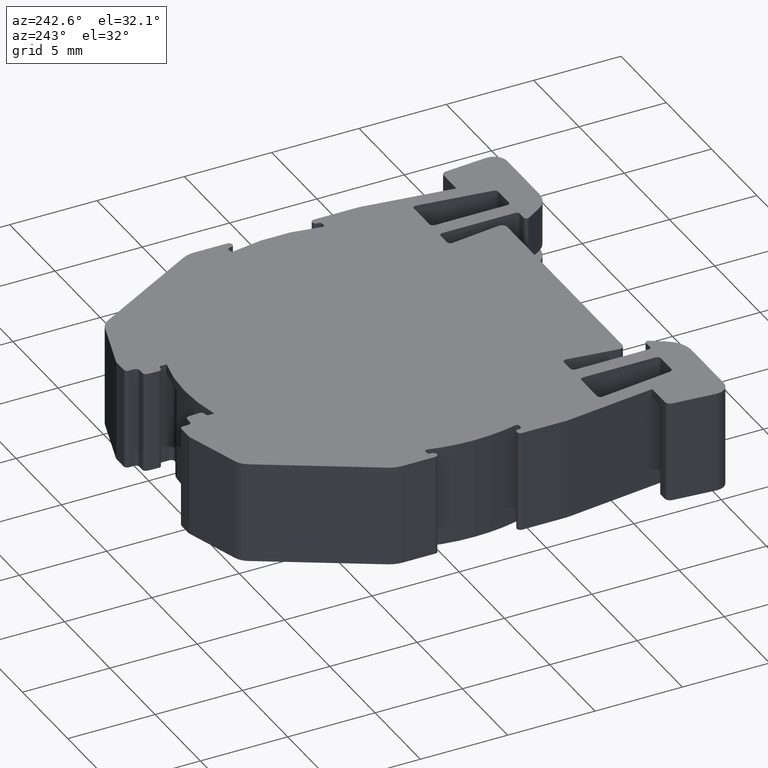
[diagram: clean part render]
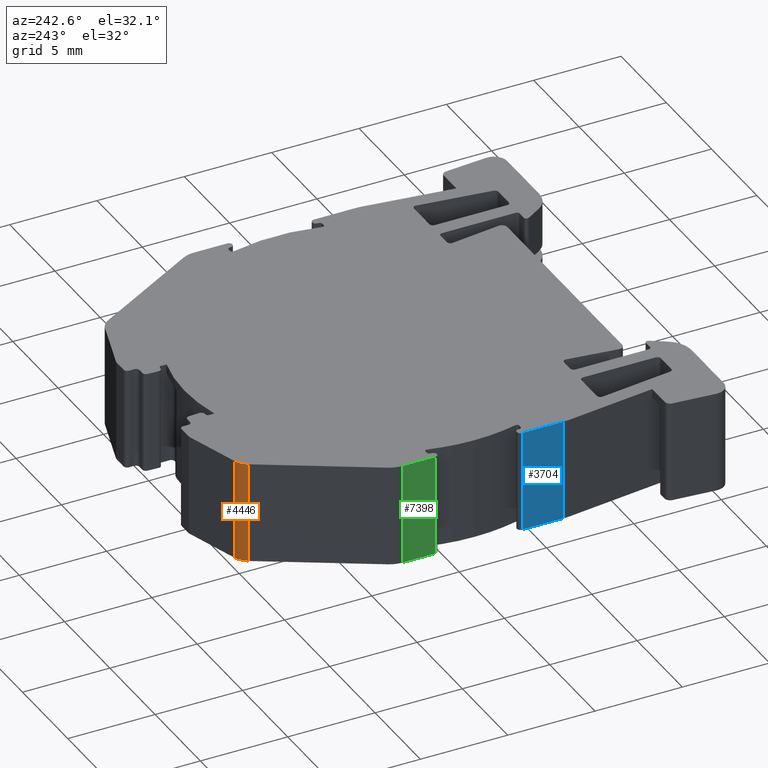
[diagram: same view with three faces highlighted in distinct colors, each labeled with its STEP entity id]
A machine part, auxiliary view with three faces highlighted in distinct colors.
Their STEP definitions:

[orange] entity #4446 — the highlighted cylindrical surface (edge-blend (fillet) strip) has radius 1 mm, axis along (0, 0, -1).
#68 = VERTEX_POINT ( 'NONE', #8094 ) ;
#83 = CIRCLE ( 'NONE', #8104, 1.000000000001444178 ) ;
#324 = DIRECTION ( 'NONE',  ( 0.000000000000000000, 0.000000000000000000, -1.000000000000000000 ) ) ;
#533 = EDGE_CURVE ( 'NONE', #3695, #68, #83, .T. ) ;
#616 = CARTESIAN_POINT ( 'NONE',  ( 1175.640195144863810, 604.9167956440809348, 5.799999999999999822 ) ) ;
#761 = EDGE_CURVE ( 'NONE', #3520, #68, #2053, .T. ) ;
#1167 = ORIENTED_EDGE ( 'NONE', *, *, #533, .T. ) ;
#1227 = DIRECTION ( 'NONE',  ( 0.000000000000000000, 0.000000000000000000, -1.000000000000000000 ) ) ;
#1250 = AXIS2_PLACEMENT_3D ( 'NONE', #6173, #6933, #6220 ) ;
#1601 = CYLINDRICAL_SURFACE ( 'NONE', #3348, 1.000000000001444178 ) ;
#1641 = FACE_OUTER_BOUND ( 'NONE', #7494, .T. ) ;
#1890 = CARTESIAN_POINT ( 'NONE',  ( 1175.074875540595940, 604.4630786933360014, 5.799999999999999822 ) ) ;
#2053 = LINE ( 'NONE', #1890, #6081 ) ;
#2284 = CARTESIAN_POINT ( 'NONE',  ( 1175.940900944382065, 603.9630786933361151, 0.000000000000000000 ) ) ;
#2633 = ORIENTED_EDGE ( 'NONE', *, *, #7342, .F. ) ;
#3111 = ORIENTED_EDGE ( 'NONE', *, *, #7794, .T. ) ;
#3348 = AXIS2_PLACEMENT_3D ( 'NONE', #6263, #324, #8344 ) ;
#3465 = CARTESIAN_POINT ( 'NONE',  ( 1175.640195144863810, 604.9167956440809348, 5.799999999999999822 ) ) ;
#3520 = VERTEX_POINT ( 'NONE', #6240 ) ;
#3549 = DIRECTION ( 'NONE',  ( 0.000000000000000000, 0.000000000000000000, 1.000000000000000000 ) ) ;
#3695 = VERTEX_POINT ( 'NONE', #7742 ) ;
#3790 = VECTOR ( 'NONE', #5546, 1000.000000000000000 ) ;
#4446 = ADVANCED_FACE ( 'NONE', ( #1641 ), #1601, .T. ) ;
#4968 = DIRECTION ( 'NONE',  ( 1.000000000000000000, 0.000000000000000000, 0.000000000000000000 ) ) ;
#5546 = DIRECTION ( 'NONE',  ( 0.000000000000000000, 0.000000000000000000, -1.000000000000000000 ) ) ;
#6081 = VECTOR ( 'NONE', #1227, 1000.000000000000000 ) ;
#6161 = ORIENTED_EDGE ( 'NONE', *, *, #761, .F. ) ;
#6173 = CARTESIAN_POINT ( 'NONE',  ( 1175.940900944382065, 603.9630786933361151, 5.799999999999999822 ) ) ;
#6220 = DIRECTION ( 'NONE',  ( 1.000000000000000000, 0.000000000000000000, 0.000000000000000000 ) ) ;
#6240 = CARTESIAN_POINT ( 'NONE',  ( 1175.074875540595940, 604.4630786933360014, 5.799999999999999822 ) ) ;
#6251 = LINE ( 'NONE', #3465, #3790 ) ;
#6263 = CARTESIAN_POINT ( 'NONE',  ( 1175.940900944382065, 603.9630786933361151, 5.799999999999999822 ) ) ;
#6933 = DIRECTION ( 'NONE',  ( 0.000000000000000000, 0.000000000000000000, 1.000000000000000000 ) ) ;
#7342 = EDGE_CURVE ( 'NONE', #8126, #3520, #8430, .T. ) ;
#7494 = EDGE_LOOP ( 'NONE', ( #3111, #1167, #6161, #2633 ) ) ;
#7742 = CARTESIAN_POINT ( 'NONE',  ( 1175.640195144863810, 604.9167956440809348, 0.000000000000000000 ) ) ;
#7794 = EDGE_CURVE ( 'NONE', #8126, #3695, #6251, .T. ) ;
#8094 = CARTESIAN_POINT ( 'NONE',  ( 1175.074875540595940, 604.4630786933360014, 0.000000000000000000 ) ) ;
#8104 = AXIS2_PLACEMENT_3D ( 'NONE', #2284, #3549, #4968 ) ;
#8126 = VERTEX_POINT ( 'NONE', #616 ) ;
#8344 = DIRECTION ( 'NONE',  ( -1.000000000000000000, 0.000000000000000000, 0.000000000000000000 ) ) ;
#8430 = CIRCLE ( 'NONE', #1250, 1.000000000001444178 ) ;

[blue] entity #3704 — the highlighted planar face has unit normal (1, 0, 0).
#363 = DIRECTION ( 'NONE',  ( 1.096526407091067611E-07, -0.9999999999999941158, 0.000000000000000000 ) ) ;
#558 = DIRECTION ( 'NONE',  ( 1.096526407091067611E-07, -0.9999999999999941158, 0.000000000000000000 ) ) ;
#642 = LINE ( 'NONE', #2658, #6740 ) ;
#666 = ORIENTED_EDGE ( 'NONE', *, *, #3514, .F. ) ;
#693 = EDGE_CURVE ( 'NONE', #3036, #5539, #2325, .T. ) ;
#1168 = VERTEX_POINT ( 'NONE', #4260 ) ;
#1665 = DIRECTION ( 'NONE',  ( 0.000000000000000000, 0.000000000000000000, -1.000000000000000000 ) ) ;
#1681 = CARTESIAN_POINT ( 'NONE',  ( 1171.317992538360159, 588.3309811074690288, 0.000000000000000000 ) ) ;
#1794 = DIRECTION ( 'NONE',  ( 0.9999999999999940048, 1.096526407091067479E-07, 0.000000000000000000 ) ) ;
#2325 = LINE ( 'NONE', #7701, #7638 ) ;
#2505 = VECTOR ( 'NONE', #3545, 1000.000000000000000 ) ;
#2658 = CARTESIAN_POINT ( 'NONE',  ( 1171.317992538360159, 588.3309811074690288, 5.799999999999999822 ) ) ;
#2796 = LINE ( 'NONE', #4209, #2505 ) ;
#3036 = VERTEX_POINT ( 'NONE', #6885 ) ;
#3514 = EDGE_CURVE ( 'NONE', #3897, #1168, #2796, .T. ) ;
#3545 = DIRECTION ( 'NONE',  ( 0.000000000000000000, 0.000000000000000000, -1.000000000000000000 ) ) ;
#3704 = ADVANCED_FACE ( 'NONE', ( #6551 ), #6591, .F. ) ;
#3801 = EDGE_CURVE ( 'NONE', #3036, #3897, #642, .T. ) ;
#3837 = LINE ( 'NONE', #1681, #4498 ) ;
#3897 = VERTEX_POINT ( 'NONE', #4822 ) ;
#4209 = CARTESIAN_POINT ( 'NONE',  ( 1171.317992538360159, 588.3309811074690288, 5.799999999999999822 ) ) ;
#4260 = CARTESIAN_POINT ( 'NONE',  ( 1171.317992538360159, 588.3309811074690288, 0.000000000000000000 ) ) ;
#4498 = VECTOR ( 'NONE', #363, 999.9999999999998863 ) ;
#4563 = CARTESIAN_POINT ( 'NONE',  ( 1171.317992538360159, 588.3309811074690288, 5.799999999999999822 ) ) ;
#4822 = CARTESIAN_POINT ( 'NONE',  ( 1171.317992538360159, 588.3309811074690288, 5.799999999999999822 ) ) ;
#5539 = VERTEX_POINT ( 'NONE', #7888 ) ;
#6007 = DIRECTION ( 'NONE',  ( -1.096526407091067479E-07, 0.9999999999999940048, 0.000000000000000000 ) ) ;
#6551 = FACE_OUTER_BOUND ( 'NONE', #8142, .T. ) ;
#6591 = PLANE ( 'NONE',  #8289 ) ;
#6740 = VECTOR ( 'NONE', #558, 999.9999999999998863 ) ;
#6885 = CARTESIAN_POINT ( 'NONE',  ( 1171.317992277202165, 590.7126776603829512, 5.799999999999999822 ) ) ;
#7108 = ORIENTED_EDGE ( 'NONE', *, *, #3801, .F. ) ;
#7167 = ORIENTED_EDGE ( 'NONE', *, *, #7484, .T. ) ;
#7484 = EDGE_CURVE ( 'NONE', #5539, #1168, #3837, .T. ) ;
#7638 = VECTOR ( 'NONE', #1665, 1000.000000000000000 ) ;
#7701 = CARTESIAN_POINT ( 'NONE',  ( 1171.317992277202165, 590.7126776603829512, 5.799999999999999822 ) ) ;
#7888 = CARTESIAN_POINT ( 'NONE',  ( 1171.317992277202165, 590.7126776603829512, 0.000000000000000000 ) ) ;
#8142 = EDGE_LOOP ( 'NONE', ( #8151, #7167, #666, #7108 ) ) ;
#8151 = ORIENTED_EDGE ( 'NONE', *, *, #693, .T. ) ;
#8289 = AXIS2_PLACEMENT_3D ( 'NONE', #4563, #1794, #6007 ) ;

[green] entity #7398 — the highlighted planar face has unit normal (1, 0, 0).
#1193 = VERTEX_POINT ( 'NONE', #2761 ) ;
#1499 = VERTEX_POINT ( 'NONE', #6529 ) ;
#1662 = VECTOR ( 'NONE', #1943, 1000.000000000000000 ) ;
#1943 = DIRECTION ( 'NONE',  ( 1.398539406807836171E-07, -0.9999999999999902300, 0.000000000000000000 ) ) ;
#2009 = CARTESIAN_POINT ( 'NONE',  ( 1171.317992538394037, 597.5540426667838574, 0.000000000000000000 ) ) ;
#2078 = EDGE_CURVE ( 'NONE', #8532, #1193, #6018, .T. ) ;
#2511 = VERTEX_POINT ( 'NONE', #2009 ) ;
#2761 = CARTESIAN_POINT ( 'NONE',  ( 1171.317992799569993, 595.6865532959149050, 5.799999999999999822 ) ) ;
#2775 = PLANE ( 'NONE',  #6326 ) ;
#2825 = CARTESIAN_POINT ( 'NONE',  ( 1171.317992799569993, 595.6865532959149050, 5.799999999999999822 ) ) ;
#2904 = DIRECTION ( 'NONE',  ( 0.9999999999999902300, 1.398539406807836436E-07, 0.000000000000000000 ) ) ;
#3020 = VECTOR ( 'NONE', #4572, 1000.000000000000000 ) ;
#3571 = EDGE_CURVE ( 'NONE', #8532, #2511, #5100, .T. ) ;
#3901 = ORIENTED_EDGE ( 'NONE', *, *, #5987, .F. ) ;
#3931 = LINE ( 'NONE', #5564, #7896 ) ;
#3938 = CARTESIAN_POINT ( 'NONE',  ( 1171.317992538394037, 597.5540426667838574, 5.799999999999999822 ) ) ;
#4572 = DIRECTION ( 'NONE',  ( 1.398539406807836171E-07, -0.9999999999999902300, 0.000000000000000000 ) ) ;
#4626 = LINE ( 'NONE', #7982, #1662 ) ;
#4773 = EDGE_CURVE ( 'NONE', #2511, #1499, #4626, .T. ) ;
#4974 = ORIENTED_EDGE ( 'NONE', *, *, #4773, .T. ) ;
#5004 = DIRECTION ( 'NONE',  ( 0.000000000000000000, 0.000000000000000000, -1.000000000000000000 ) ) ;
#5100 = LINE ( 'NONE', #8364, #6301 ) ;
#5368 = CARTESIAN_POINT ( 'NONE',  ( 1171.317992799569993, 595.6865532959149050, 5.799999999999999822 ) ) ;
#5380 = EDGE_LOOP ( 'NONE', ( #7668, #4974, #3901, #6014 ) ) ;
#5564 = CARTESIAN_POINT ( 'NONE',  ( 1171.317992799569993, 595.6865532959149050, 5.799999999999999822 ) ) ;
#5987 = EDGE_CURVE ( 'NONE', #1193, #1499, #3931, .T. ) ;
#6014 = ORIENTED_EDGE ( 'NONE', *, *, #2078, .F. ) ;
#6018 = LINE ( 'NONE', #5368, #3020 ) ;
#6177 = DIRECTION ( 'NONE',  ( 0.000000000000000000, 0.000000000000000000, -1.000000000000000000 ) ) ;
#6301 = VECTOR ( 'NONE', #5004, 1000.000000000000000 ) ;
#6326 = AXIS2_PLACEMENT_3D ( 'NONE', #2825, #2904, #8294 ) ;
#6529 = CARTESIAN_POINT ( 'NONE',  ( 1171.317992799569993, 595.6865532959149050, 0.000000000000000000 ) ) ;
#6796 = FACE_OUTER_BOUND ( 'NONE', #5380, .T. ) ;
#7398 = ADVANCED_FACE ( 'NONE', ( #6796 ), #2775, .F. ) ;
#7668 = ORIENTED_EDGE ( 'NONE', *, *, #3571, .T. ) ;
#7896 = VECTOR ( 'NONE', #6177, 1000.000000000000000 ) ;
#7982 = CARTESIAN_POINT ( 'NONE',  ( 1171.317992799569993, 595.6865532959149050, 0.000000000000000000 ) ) ;
#8294 = DIRECTION ( 'NONE',  ( -1.398539406807836436E-07, 0.9999999999999902300, 0.000000000000000000 ) ) ;
#8364 = CARTESIAN_POINT ( 'NONE',  ( 1171.317992538394037, 597.5540426667838574, 5.799999999999999822 ) ) ;
#8532 = VERTEX_POINT ( 'NONE', #3938 ) ;